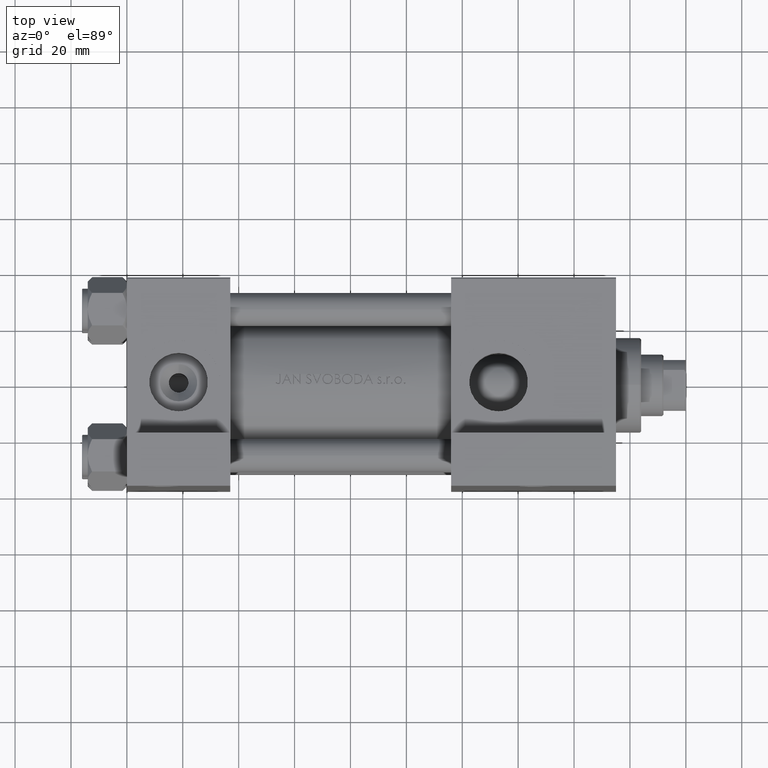
[diagram: clean part render]
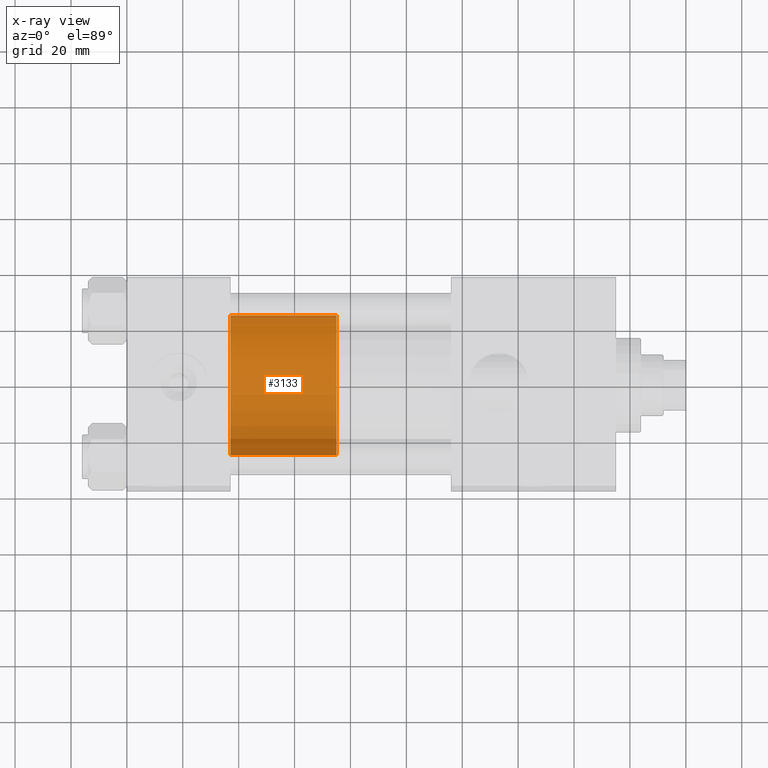
[diagram: x-ray — body ghosted, one internal face saturated and labeled with its STEP entity id]
A machine part, top view, then the same camera in x-ray: the body is ghosted and one INTERNAL B-rep face — a face not visible from any outside direction — is saturated and labeled: STEP entity #3133.
In plain terms, the highlighted cylindrical surface (partial cylindrical patch) has radius 25 mm, axis along (-1, 0, 0).
Its self-contained STEP definition (entity closure, byte-faithful):
#549 = CIRCLE ( 'NONE', #20622, 25.00000000000000000 ) ;
#1027 = VERTEX_POINT ( 'NONE', #35060 ) ;
#3133 = ADVANCED_FACE ( 'NONE', ( #38835 ), #4711, .T. ) ;
#4625 = AXIS2_PLACEMENT_3D ( 'NONE', #27091, #42284, #18202 ) ;
#4711 = CYLINDRICAL_SURFACE ( 'NONE', #15836, 25.00000000000000000 ) ;
#5274 = DIRECTION ( 'NONE',  ( 1.000000000000000000, 0.000000000000000000, 0.000000000000000000 ) ) ;
#5526 = VECTOR ( 'NONE', #6044, 1000.000000000000000 ) ;
#6044 = DIRECTION ( 'NONE',  ( -0.000000000000000000, -0.000000000000000000, -1.000000000000000000 ) ) ;
#7060 = EDGE_CURVE ( 'NONE', #8554, #1027, #40422, .T. ) ;
#8554 = VERTEX_POINT ( 'NONE', #19685 ) ;
#9014 = CARTESIAN_POINT ( 'NONE',  ( 0.000000000000000000, 0.000000000000000000, 0.000000000000000000 ) ) ;
#13278 = CARTESIAN_POINT ( 'NONE',  ( 25.00000000000000000, 3.061616997868383043E-15, 38.00000000000000000 ) ) ;
#15185 = DIRECTION ( 'NONE',  ( -0.000000000000000000, -0.000000000000000000, -1.000000000000000000 ) ) ;
#15675 = CARTESIAN_POINT ( 'NONE',  ( -25.00000000000000000, 0.000000000000000000, 38.00000000000000000 ) ) ;
#15836 = AXIS2_PLACEMENT_3D ( 'NONE', #47497, #32819, #17143 ) ;
#16563 = EDGE_CURVE ( 'NONE', #1027, #48907, #549, .T. ) ;
#17143 = DIRECTION ( 'NONE',  ( -1.000000000000000000, 0.000000000000000000, 0.000000000000000000 ) ) ;
#18202 = DIRECTION ( 'NONE',  ( 1.000000000000000000, 0.000000000000000000, 0.000000000000000000 ) ) ;
#18821 = ORIENTED_EDGE ( 'NONE', *, *, #7060, .T. ) ;
#19120 = VERTEX_POINT ( 'NONE', #46238 ) ;
#19685 = CARTESIAN_POINT ( 'NONE',  ( 25.00000000000000000, 3.061616997868383043E-15, 38.00000000000000000 ) ) ;
#20622 = AXIS2_PLACEMENT_3D ( 'NONE', #9014, #30511, #5274 ) ;
#22375 = EDGE_CURVE ( 'NONE', #8554, #19120, #34073, .T. ) ;
#27091 = CARTESIAN_POINT ( 'NONE',  ( 0.000000000000000000, 0.000000000000000000, 38.00000000000000000 ) ) ;
#27982 = EDGE_LOOP ( 'NONE', ( #42097, #18821, #39877, #47546 ) ) ;
#30511 = DIRECTION ( 'NONE',  ( 0.000000000000000000, 0.000000000000000000, 1.000000000000000000 ) ) ;
#32819 = DIRECTION ( 'NONE',  ( -0.000000000000000000, -0.000000000000000000, -1.000000000000000000 ) ) ;
#33776 = EDGE_CURVE ( 'NONE', #19120, #48907, #41838, .T. ) ;
#34073 = CIRCLE ( 'NONE', #4625, 25.00000000000000000 ) ;
#35060 = CARTESIAN_POINT ( 'NONE',  ( 25.00000000000000000, 3.061616997868383043E-15, 0.000000000000000000 ) ) ;
#38835 = FACE_OUTER_BOUND ( 'NONE', #27982, .T. ) ;
#39877 = ORIENTED_EDGE ( 'NONE', *, *, #16563, .T. ) ;
#40422 = LINE ( 'NONE', #13278, #5526 ) ;
#41469 = VECTOR ( 'NONE', #15185, 1000.000000000000000 ) ;
#41838 = LINE ( 'NONE', #15675, #41469 ) ;
#42097 = ORIENTED_EDGE ( 'NONE', *, *, #22375, .F. ) ;
#42284 = DIRECTION ( 'NONE',  ( 0.000000000000000000, 0.000000000000000000, 1.000000000000000000 ) ) ;
#42626 = CARTESIAN_POINT ( 'NONE',  ( -25.00000000000000000, 0.000000000000000000, 0.000000000000000000 ) ) ;
#46238 = CARTESIAN_POINT ( 'NONE',  ( -25.00000000000000000, 0.000000000000000000, 38.00000000000000000 ) ) ;
#47497 = CARTESIAN_POINT ( 'NONE',  ( 0.000000000000000000, 0.000000000000000000, 38.00000000000000000 ) ) ;
#47546 = ORIENTED_EDGE ( 'NONE', *, *, #33776, .F. ) ;
#48907 = VERTEX_POINT ( 'NONE', #42626 ) ;